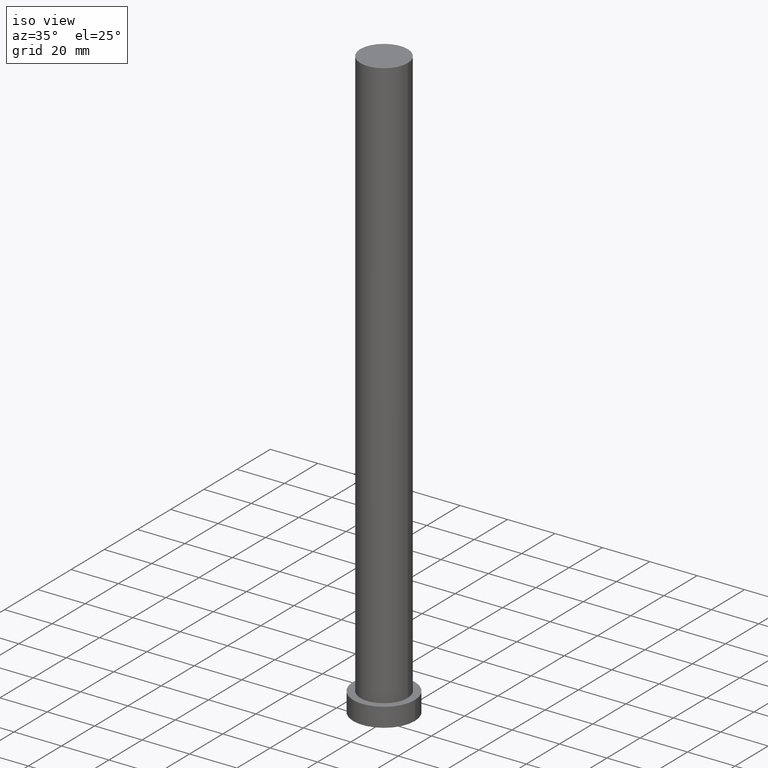
[diagram: clean part render]
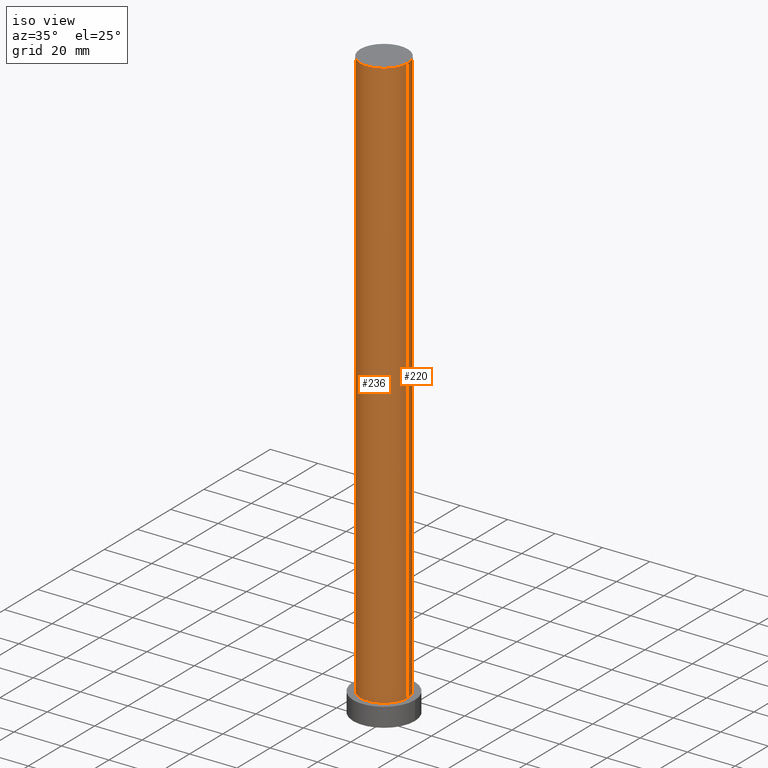
[diagram: same view with one multi-face feature highlighted, each face labeled with its STEP entity id]
A machine part, iso view. The highlighted faces form ONE feature: a constant-radius fillet chain: 2 tangent blend faces with common blend radius 10 mm. The faces share edges in the B-rep.
Their STEP definitions:
[1] entity #220 (Cylinder):
#3 = EDGE_CURVE ( 'NONE', #29, #190, #231, .T. ) ;
#4 = DIRECTION ( 'NONE',  ( -0.000000000000000000, -0.000000000000000000, -1.000000000000000000 ) ) ;
#21 = CIRCLE ( 'NONE', #81, 10.00000000000000000 ) ;
#29 = VERTEX_POINT ( 'NONE', #239 ) ;
#39 = VECTOR ( 'NONE', #4, 1000.000000000000000 ) ;
#42 = EDGE_CURVE ( 'NONE', #70, #158, #21, .T. ) ;
#47 = AXIS2_PLACEMENT_3D ( 'NONE', #143, #138, #214 ) ;
#49 = CARTESIAN_POINT ( 'NONE',  ( 0.000000000000000000, 0.000000000000000000, 250.0000000000000000 ) ) ;
#59 = CARTESIAN_POINT ( 'NONE',  ( -10.00000000000000000, 0.000000000000000000, 8.000000000000000000 ) ) ;
#61 = CARTESIAN_POINT ( 'NONE',  ( -10.00000000000000000, 0.000000000000000000, 250.0000000000000000 ) ) ;
#70 = VERTEX_POINT ( 'NONE', #169 ) ;
#74 = DIRECTION ( 'NONE',  ( -1.000000000000000000, 0.000000000000000000, 0.000000000000000000 ) ) ;
#81 = AXIS2_PLACEMENT_3D ( 'NONE', #164, #136, #112 ) ;
#89 = CARTESIAN_POINT ( 'NONE',  ( 10.00000000000000000, 1.224646799147353256E-15, 250.0000000000000000 ) ) ;
#96 = LINE ( 'NONE', #61, #39 ) ;
#100 = DIRECTION ( 'NONE',  ( -0.000000000000000000, -0.000000000000000000, -1.000000000000000000 ) ) ;
#112 = DIRECTION ( 'NONE',  ( 1.000000000000000000, 0.000000000000000000, 0.000000000000000000 ) ) ;
#115 = VECTOR ( 'NONE', #211, 1000.000000000000000 ) ;
#123 = FACE_OUTER_BOUND ( 'NONE', #251, .T. ) ;
#135 = AXIS2_PLACEMENT_3D ( 'NONE', #49, #100, #74 ) ;
#136 = DIRECTION ( 'NONE',  ( 0.000000000000000000, 0.000000000000000000, 1.000000000000000000 ) ) ;
#138 = DIRECTION ( 'NONE',  ( 0.000000000000000000, 0.000000000000000000, 1.000000000000000000 ) ) ;
#143 = CARTESIAN_POINT ( 'NONE',  ( 0.000000000000000000, 0.000000000000000000, 8.000000000000000000 ) ) ;
#153 = EDGE_CURVE ( 'NONE', #70, #29, #191, .T. ) ;
#158 = VERTEX_POINT ( 'NONE', #224 ) ;
#164 = CARTESIAN_POINT ( 'NONE',  ( 0.000000000000000000, 0.000000000000000000, 250.0000000000000000 ) ) ;
#169 = CARTESIAN_POINT ( 'NONE',  ( 10.00000000000000000, 1.224646799147353256E-15, 250.0000000000000000 ) ) ;
#189 = EDGE_CURVE ( 'NONE', #158, #190, #96, .T. ) ;
#190 = VERTEX_POINT ( 'NONE', #59 ) ;
#191 = LINE ( 'NONE', #89, #115 ) ;
#207 = ORIENTED_EDGE ( 'NONE', *, *, #189, .F. ) ;
#211 = DIRECTION ( 'NONE',  ( -0.000000000000000000, -0.000000000000000000, -1.000000000000000000 ) ) ;
#212 = ORIENTED_EDGE ( 'NONE', *, *, #3, .T. ) ;
#214 = DIRECTION ( 'NONE',  ( 1.000000000000000000, 0.000000000000000000, 0.000000000000000000 ) ) ;
#217 = CYLINDRICAL_SURFACE ( 'NONE', #135, 10.00000000000000000 ) ;
#220 = ADVANCED_FACE ( 'NONE', ( #123 ), #217, .T. ) ;
#224 = CARTESIAN_POINT ( 'NONE',  ( -10.00000000000000000, 0.000000000000000000, 250.0000000000000000 ) ) ;
#230 = ORIENTED_EDGE ( 'NONE', *, *, #153, .T. ) ;
#231 = CIRCLE ( 'NONE', #47, 10.00000000000000000 ) ;
#235 = ORIENTED_EDGE ( 'NONE', *, *, #42, .F. ) ;
#239 = CARTESIAN_POINT ( 'NONE',  ( 10.00000000000000000, 1.224646799147353256E-15, 8.000000000000000000 ) ) ;
#251 = EDGE_LOOP ( 'NONE', ( #235, #230, #212, #207 ) ) ;
[2] entity #236 (Cylinder):
#4 = DIRECTION ( 'NONE',  ( -0.000000000000000000, -0.000000000000000000, -1.000000000000000000 ) ) ;
#15 = ORIENTED_EDGE ( 'NONE', *, *, #189, .T. ) ;
#29 = VERTEX_POINT ( 'NONE', #239 ) ;
#32 = CARTESIAN_POINT ( 'NONE',  ( 0.000000000000000000, 0.000000000000000000, 250.0000000000000000 ) ) ;
#33 = ORIENTED_EDGE ( 'NONE', *, *, #153, .F. ) ;
#39 = VECTOR ( 'NONE', #4, 1000.000000000000000 ) ;
#45 = DIRECTION ( 'NONE',  ( 1.000000000000000000, 0.000000000000000000, 0.000000000000000000 ) ) ;
#59 = CARTESIAN_POINT ( 'NONE',  ( -10.00000000000000000, 0.000000000000000000, 8.000000000000000000 ) ) ;
#61 = CARTESIAN_POINT ( 'NONE',  ( -10.00000000000000000, 0.000000000000000000, 250.0000000000000000 ) ) ;
#63 = EDGE_LOOP ( 'NONE', ( #33, #222, #15, #91 ) ) ;
#70 = VERTEX_POINT ( 'NONE', #169 ) ;
#77 = CYLINDRICAL_SURFACE ( 'NONE', #216, 10.00000000000000000 ) ;
#82 = AXIS2_PLACEMENT_3D ( 'NONE', #106, #195, #175 ) ;
#89 = CARTESIAN_POINT ( 'NONE',  ( 10.00000000000000000, 1.224646799147353256E-15, 250.0000000000000000 ) ) ;
#91 = ORIENTED_EDGE ( 'NONE', *, *, #227, .T. ) ;
#96 = LINE ( 'NONE', #61, #39 ) ;
#98 = FACE_OUTER_BOUND ( 'NONE', #63, .T. ) ;
#106 = CARTESIAN_POINT ( 'NONE',  ( 0.000000000000000000, 0.000000000000000000, 250.0000000000000000 ) ) ;
#115 = VECTOR ( 'NONE', #211, 1000.000000000000000 ) ;
#127 = DIRECTION ( 'NONE',  ( -1.000000000000000000, 0.000000000000000000, 0.000000000000000000 ) ) ;
#147 = EDGE_CURVE ( 'NONE', #158, #70, #174, .T. ) ;
#153 = EDGE_CURVE ( 'NONE', #70, #29, #191, .T. ) ;
#158 = VERTEX_POINT ( 'NONE', #224 ) ;
#165 = DIRECTION ( 'NONE',  ( 0.000000000000000000, 0.000000000000000000, 1.000000000000000000 ) ) ;
#169 = CARTESIAN_POINT ( 'NONE',  ( 10.00000000000000000, 1.224646799147353256E-15, 250.0000000000000000 ) ) ;
#172 = DIRECTION ( 'NONE',  ( -0.000000000000000000, -0.000000000000000000, -1.000000000000000000 ) ) ;
#174 = CIRCLE ( 'NONE', #82, 10.00000000000000000 ) ;
#175 = DIRECTION ( 'NONE',  ( 1.000000000000000000, 0.000000000000000000, 0.000000000000000000 ) ) ;
#184 = CARTESIAN_POINT ( 'NONE',  ( 0.000000000000000000, 0.000000000000000000, 8.000000000000000000 ) ) ;
#189 = EDGE_CURVE ( 'NONE', #158, #190, #96, .T. ) ;
#190 = VERTEX_POINT ( 'NONE', #59 ) ;
#191 = LINE ( 'NONE', #89, #115 ) ;
#195 = DIRECTION ( 'NONE',  ( 0.000000000000000000, 0.000000000000000000, 1.000000000000000000 ) ) ;
#206 = CIRCLE ( 'NONE', #242, 10.00000000000000000 ) ;
#211 = DIRECTION ( 'NONE',  ( -0.000000000000000000, -0.000000000000000000, -1.000000000000000000 ) ) ;
#216 = AXIS2_PLACEMENT_3D ( 'NONE', #32, #172, #127 ) ;
#222 = ORIENTED_EDGE ( 'NONE', *, *, #147, .F. ) ;
#224 = CARTESIAN_POINT ( 'NONE',  ( -10.00000000000000000, 0.000000000000000000, 250.0000000000000000 ) ) ;
#227 = EDGE_CURVE ( 'NONE', #190, #29, #206, .T. ) ;
#236 = ADVANCED_FACE ( 'NONE', ( #98 ), #77, .T. ) ;
#239 = CARTESIAN_POINT ( 'NONE',  ( 10.00000000000000000, 1.224646799147353256E-15, 8.000000000000000000 ) ) ;
#242 = AXIS2_PLACEMENT_3D ( 'NONE', #184, #165, #45 ) ;